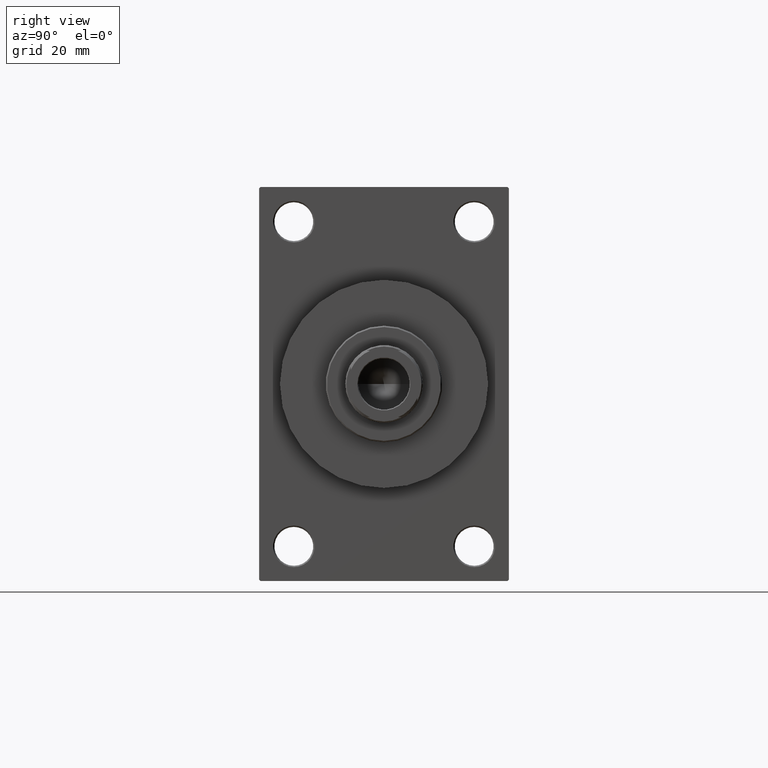
[diagram: clean part render]
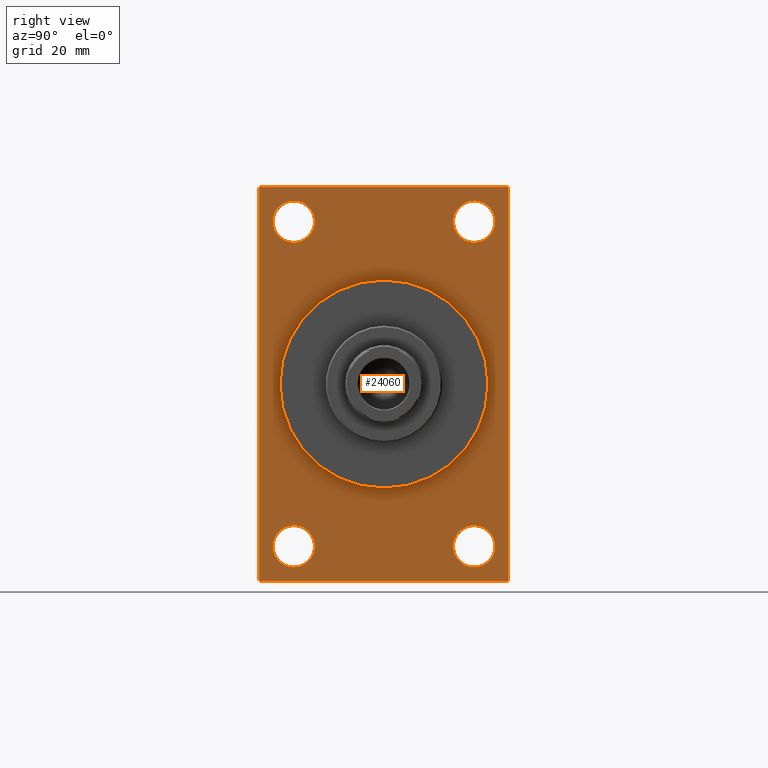
[diagram: same view with one face highlighted and labeled with its STEP entity id]
A machine part, right view. The second image highlights one B-rep face of the part: STEP entity #24060.
In plain terms, the highlighted planar face has unit normal (-1, 0, 0).
Its self-contained STEP definition (entity closure, byte-faithful):
#1240 = EDGE_LOOP ( 'NONE', ( #30084, #27766 ) ) ;
#1350 = CARTESIAN_POINT ( 'NONE',  ( 140.0000000000000000, 32.50000000000000711, -66.00000000000002842 ) ) ;
#1677 = VECTOR ( 'NONE', #1704, 1000.000000000000114 ) ;
#1704 = DIRECTION ( 'NONE',  ( 0.000000000000000000, -0.7071067811865474617, 0.7071067811865474617 ) ) ;
#1892 = CIRCLE ( 'NONE', #33851, 7.499999999999936939 ) ;
#1929 = EDGE_LOOP ( 'NONE', ( #40082, #38029, #31249, #12696, #15529, #6453, #27384, #20364 ) ) ;
#2599 = EDGE_CURVE ( 'NONE', #16192, #33892, #6109, .T. ) ;
#2664 = DIRECTION ( 'NONE',  ( 0.000000000000000000, 0.000000000000000000, 1.000000000000000000 ) ) ;
#2666 = ORIENTED_EDGE ( 'NONE', *, *, #14636, .T. ) ;
#2998 = DIRECTION ( 'NONE',  ( 0.000000000000000000, 0.000000000000000000, -1.000000000000000000 ) ) ;
#3971 = CARTESIAN_POINT ( 'NONE',  ( 140.0000000000000000, -32.50000000000000000, 65.99999999999994316 ) ) ;
#4556 = DIRECTION ( 'NONE',  ( 0.000000000000000000, -1.000000000000000000, -1.541976423090495387E-16 ) ) ;
#4793 = AXIS2_PLACEMENT_3D ( 'NONE', #12931, #31058, #45628 ) ;
#5226 = LINE ( 'NONE', #11681, #17678 ) ;
#5277 = DIRECTION ( 'NONE',  ( 0.000000000000000000, 0.7071067811865573427, -0.7071067811865378028 ) ) ;
#5278 = CARTESIAN_POINT ( 'NONE',  ( 140.0000000000000000, 44.50000000000002132, 71.00000000000000000 ) ) ;
#5348 = DIRECTION ( 'NONE',  ( -1.000000000000000000, 0.000000000000000000, -0.000000000000000000 ) ) ;
#6109 = LINE ( 'NONE', #17082, #37337 ) ;
#6453 = ORIENTED_EDGE ( 'NONE', *, *, #34218, .T. ) ;
#6589 = VERTEX_POINT ( 'NONE', #31247 ) ;
#6620 = CARTESIAN_POINT ( 'NONE',  ( 140.0000000000000000, 45.00000000000001421, -70.50000000000001421 ) ) ;
#7335 = EDGE_CURVE ( 'NONE', #6589, #41693, #30316, .T. ) ;
#7348 = DIRECTION ( 'NONE',  ( 0.000000000000000000, 0.000000000000000000, -1.000000000000000000 ) ) ;
#7405 = AXIS2_PLACEMENT_3D ( 'NONE', #22607, #32633, #47207 ) ;
#7909 = VERTEX_POINT ( 'NONE', #40701 ) ;
#8050 = EDGE_CURVE ( 'NONE', #42024, #20378, #43645, .T. ) ;
#8470 = AXIS2_PLACEMENT_3D ( 'NONE', #18721, #18487, #18944 ) ;
#9319 = EDGE_CURVE ( 'NONE', #12653, #43972, #26909, .T. ) ;
#9336 = ORIENTED_EDGE ( 'NONE', *, *, #29412, .F. ) ;
#9342 = LINE ( 'NONE', #5278, #1677 ) ;
#9363 = DIRECTION ( 'NONE',  ( -1.000000000000000000, 0.000000000000000000, -0.000000000000000000 ) ) ;
#9401 = VERTEX_POINT ( 'NONE', #39406 ) ;
#9620 = VERTEX_POINT ( 'NONE', #6620 ) ;
#9942 = DIRECTION ( 'NONE',  ( -1.000000000000000000, 0.000000000000000000, -0.000000000000000000 ) ) ;
#10234 = EDGE_CURVE ( 'NONE', #18916, #9620, #16520, .T. ) ;
#10886 = FACE_OUTER_BOUND ( 'NONE', #1929, .T. ) ;
#10938 = CARTESIAN_POINT ( 'NONE',  ( 140.0000000000000000, 0.000000000000000000, 0.000000000000000000 ) ) ;
#11307 = CIRCLE ( 'NONE', #32656, 7.500000000000034639 ) ;
#11388 = ORIENTED_EDGE ( 'NONE', *, *, #45341, .T. ) ;
#11681 = CARTESIAN_POINT ( 'NONE',  ( 140.0000000000000000, 45.00000000000002132, 71.00000000000000000 ) ) ;
#12398 = AXIS2_PLACEMENT_3D ( 'NONE', #10938, #40039, #7348 ) ;
#12653 = VERTEX_POINT ( 'NONE', #3971 ) ;
#12674 = CARTESIAN_POINT ( 'NONE',  ( 140.0000000000000000, -44.49999999999997158, -71.00000000000000000 ) ) ;
#12696 = ORIENTED_EDGE ( 'NONE', *, *, #10234, .T. ) ;
#12931 = CARTESIAN_POINT ( 'NONE',  ( 140.0000000000000000, -32.50000000000000000, 58.50000000000000711 ) ) ;
#13668 = AXIS2_PLACEMENT_3D ( 'NONE', #36985, #45116, #26504 ) ;
#13899 = VECTOR ( 'NONE', #4556, 1000.000000000000000 ) ;
#13973 = VECTOR ( 'NONE', #42538, 999.9999999999998863 ) ;
#14221 = FACE_BOUND ( 'NONE', #14734, .T. ) ;
#14546 = VECTOR ( 'NONE', #22667, 1000.000000000000000 ) ;
#14636 = EDGE_CURVE ( 'NONE', #20595, #9401, #1892, .T. ) ;
#14649 = CARTESIAN_POINT ( 'NONE',  ( 140.0000000000000000, -32.50000000000000000, -58.49999999999999289 ) ) ;
#14659 = VERTEX_POINT ( 'NONE', #22767 ) ;
#14734 = EDGE_LOOP ( 'NONE', ( #11388, #19585 ) ) ;
#15319 = CIRCLE ( 'NONE', #26778, 7.499999999999936939 ) ;
#15491 = DIRECTION ( 'NONE',  ( 0.000000000000000000, -4.886545002751570165E-17, -1.000000000000000000 ) ) ;
#15529 = ORIENTED_EDGE ( 'NONE', *, *, #39482, .F. ) ;
#16192 = VERTEX_POINT ( 'NONE', #34890 ) ;
#16427 = DIRECTION ( 'NONE',  ( -1.000000000000000000, 0.000000000000000000, -0.000000000000000000 ) ) ;
#16520 = LINE ( 'NONE', #27500, #13973 ) ;
#17082 = CARTESIAN_POINT ( 'NONE',  ( 140.0000000000000000, -44.99999999999997158, 70.99999999999998579 ) ) ;
#17459 = CARTESIAN_POINT ( 'NONE',  ( 140.0000000000000000, -44.99999999999997158, 70.49999999999998579 ) ) ;
#17678 = VECTOR ( 'NONE', #15491, 1000.000000000000000 ) ;
#17897 = VERTEX_POINT ( 'NONE', #41737 ) ;
#18039 = PLANE ( 'NONE',  #40168 ) ;
#18487 = DIRECTION ( 'NONE',  ( -1.000000000000000000, 0.000000000000000000, -0.000000000000000000 ) ) ;
#18721 = CARTESIAN_POINT ( 'NONE',  ( 140.0000000000000000, 32.50000000000000711, -58.50000000000000000 ) ) ;
#18841 = AXIS2_PLACEMENT_3D ( 'NONE', #20804, #9363, #2664 ) ;
#18916 = VERTEX_POINT ( 'NONE', #43504 ) ;
#18944 = DIRECTION ( 'NONE',  ( 0.000000000000000000, 0.000000000000000000, 1.000000000000000000 ) ) ;
#19485 = VERTEX_POINT ( 'NONE', #45084 ) ;
#19585 = ORIENTED_EDGE ( 'NONE', *, *, #26639, .T. ) ;
#19662 = CARTESIAN_POINT ( 'NONE',  ( 140.0000000000000000, -44.99999999999997158, -70.50000000000000000 ) ) ;
#19670 = CARTESIAN_POINT ( 'NONE',  ( 140.0000000000000000, 32.50000000000000711, 58.50000000000000711 ) ) ;
#19735 = EDGE_CURVE ( 'NONE', #9401, #20595, #38639, .T. ) ;
#19898 = VERTEX_POINT ( 'NONE', #1350 ) ;
#20364 = ORIENTED_EDGE ( 'NONE', *, *, #38280, .T. ) ;
#20378 = VERTEX_POINT ( 'NONE', #46862 ) ;
#20595 = VERTEX_POINT ( 'NONE', #25966 ) ;
#20705 = CARTESIAN_POINT ( 'NONE',  ( 140.0000000000000000, -32.50000000000000000, 51.00000000000007105 ) ) ;
#20804 = CARTESIAN_POINT ( 'NONE',  ( 140.0000000000000000, -32.50000000000000000, -58.49999999999999289 ) ) ;
#20850 = CARTESIAN_POINT ( 'NONE',  ( 140.0000000000000000, -32.50000000000000000, 58.50000000000000711 ) ) ;
#21156 = FACE_BOUND ( 'NONE', #24871, .T. ) ;
#21271 = CIRCLE ( 'NONE', #28109, 7.500000000000041744 ) ;
#22131 = CARTESIAN_POINT ( 'NONE',  ( 140.0000000000000000, -32.50000000000000000, -50.99999999999995737 ) ) ;
#22489 = EDGE_CURVE ( 'NONE', #33892, #7909, #41788, .T. ) ;
#22607 = CARTESIAN_POINT ( 'NONE',  ( 140.0000000000000000, 32.50000000000000711, 58.50000000000000711 ) ) ;
#22667 = DIRECTION ( 'NONE',  ( 0.000000000000000000, -1.000000000000000000, -1.541976423090495633E-16 ) ) ;
#22767 = CARTESIAN_POINT ( 'NONE',  ( 140.0000000000000000, -32.50000000000000000, -66.00000000000001421 ) ) ;
#22930 = EDGE_LOOP ( 'NONE', ( #24835, #9336 ) ) ;
#24060 = ADVANCED_FACE ( 'NONE', ( #24511, #25204, #14221, #21156, #32118, #10886 ), #18039, .F. ) ;
#24232 = EDGE_CURVE ( 'NONE', #14659, #39739, #39423, .T. ) ;
#24511 = FACE_BOUND ( 'NONE', #41235, .T. ) ;
#24835 = ORIENTED_EDGE ( 'NONE', *, *, #8050, .F. ) ;
#24871 = EDGE_LOOP ( 'NONE', ( #31292, #2666 ) ) ;
#25204 = FACE_BOUND ( 'NONE', #1240, .T. ) ;
#25966 = CARTESIAN_POINT ( 'NONE',  ( 140.0000000000000000, 32.50000000000000711, 65.99999999999994316 ) ) ;
#26347 = DIRECTION ( 'NONE',  ( 0.000000000000000000, 0.000000000000000000, 1.000000000000000000 ) ) ;
#26504 = DIRECTION ( 'NONE',  ( 0.000000000000000000, 0.000000000000000000, -1.000000000000000000 ) ) ;
#26639 = EDGE_CURVE ( 'NONE', #17897, #19898, #11307, .T. ) ;
#26778 = AXIS2_PLACEMENT_3D ( 'NONE', #20850, #38269, #27770 ) ;
#26909 = CIRCLE ( 'NONE', #4793, 7.499999999999936939 ) ;
#27384 = ORIENTED_EDGE ( 'NONE', *, *, #7335, .T. ) ;
#27426 = CARTESIAN_POINT ( 'NONE',  ( 140.0000000000000000, -44.49999999999995026, 70.99999999999998579 ) ) ;
#27500 = CARTESIAN_POINT ( 'NONE',  ( 140.0000000000000000, 45.00000000000001421, -70.50000000000001421 ) ) ;
#27519 = CIRCLE ( 'NONE', #8470, 7.500000000000034639 ) ;
#27766 = ORIENTED_EDGE ( 'NONE', *, *, #28214, .T. ) ;
#27770 = DIRECTION ( 'NONE',  ( 0.000000000000000000, 0.000000000000000000, 1.000000000000000000 ) ) ;
#27969 = DIRECTION ( 'NONE',  ( -0.000000000000000000, -0.7071067811865426878, -0.7071067811865524577 ) ) ;
#28109 = AXIS2_PLACEMENT_3D ( 'NONE', #14649, #29198, #39483 ) ;
#28214 = EDGE_CURVE ( 'NONE', #39739, #14659, #21271, .T. ) ;
#28315 = VECTOR ( 'NONE', #27969, 1000.000000000000000 ) ;
#29198 = DIRECTION ( 'NONE',  ( -1.000000000000000000, 0.000000000000000000, -0.000000000000000000 ) ) ;
#29412 = EDGE_CURVE ( 'NONE', #20378, #42024, #44146, .T. ) ;
#30084 = ORIENTED_EDGE ( 'NONE', *, *, #24232, .T. ) ;
#30316 = LINE ( 'NONE', #45357, #13899 ) ;
#30760 = CARTESIAN_POINT ( 'NONE',  ( 140.0000000000000000, 45.00000000000001421, -70.99999999999998579 ) ) ;
#31058 = DIRECTION ( 'NONE',  ( -1.000000000000000000, 0.000000000000000000, -0.000000000000000000 ) ) ;
#31247 = CARTESIAN_POINT ( 'NONE',  ( 140.0000000000000000, 44.50000000000002132, 71.00000000000000000 ) ) ;
#31249 = ORIENTED_EDGE ( 'NONE', *, *, #32822, .F. ) ;
#31292 = ORIENTED_EDGE ( 'NONE', *, *, #19735, .T. ) ;
#32118 = FACE_BOUND ( 'NONE', #22930, .T. ) ;
#32633 = DIRECTION ( 'NONE',  ( -1.000000000000000000, 0.000000000000000000, -0.000000000000000000 ) ) ;
#32656 = AXIS2_PLACEMENT_3D ( 'NONE', #41728, #16427, #38614 ) ;
#32822 = EDGE_CURVE ( 'NONE', #18916, #7909, #34087, .T. ) ;
#33851 = AXIS2_PLACEMENT_3D ( 'NONE', #19670, #5348, #26347 ) ;
#33892 = VERTEX_POINT ( 'NONE', #19662 ) ;
#33981 = EDGE_CURVE ( 'NONE', #43972, #12653, #15319, .T. ) ;
#34087 = LINE ( 'NONE', #30760, #14546 ) ;
#34218 = EDGE_CURVE ( 'NONE', #19485, #6589, #9342, .T. ) ;
#34890 = CARTESIAN_POINT ( 'NONE',  ( 140.0000000000000000, -44.99999999999997158, 70.49999999999998579 ) ) ;
#36985 = CARTESIAN_POINT ( 'NONE',  ( 140.0000000000000000, 0.000000000000000000, 0.000000000000000000 ) ) ;
#37175 = VECTOR ( 'NONE', #5277, 1000.000000000000000 ) ;
#37337 = VECTOR ( 'NONE', #2998, 1000.000000000000000 ) ;
#38029 = ORIENTED_EDGE ( 'NONE', *, *, #22489, .T. ) ;
#38269 = DIRECTION ( 'NONE',  ( -1.000000000000000000, 0.000000000000000000, -0.000000000000000000 ) ) ;
#38280 = EDGE_CURVE ( 'NONE', #41693, #16192, #38941, .T. ) ;
#38614 = DIRECTION ( 'NONE',  ( 0.000000000000000000, 0.000000000000000000, 1.000000000000000000 ) ) ;
#38639 = CIRCLE ( 'NONE', #7405, 7.499999999999936939 ) ;
#38941 = LINE ( 'NONE', #17459, #28315 ) ;
#39406 = CARTESIAN_POINT ( 'NONE',  ( 140.0000000000000000, 32.50000000000000711, 51.00000000000007105 ) ) ;
#39423 = CIRCLE ( 'NONE', #18841, 7.500000000000041744 ) ;
#39482 = EDGE_CURVE ( 'NONE', #19485, #9620, #5226, .T. ) ;
#39483 = DIRECTION ( 'NONE',  ( 0.000000000000000000, 0.000000000000000000, 1.000000000000000000 ) ) ;
#39522 = DIRECTION ( 'NONE',  ( -0.000000000000000000, 0.000000000000000000, 1.000000000000000000 ) ) ;
#39739 = VERTEX_POINT ( 'NONE', #22131 ) ;
#39991 = CARTESIAN_POINT ( 'NONE',  ( 140.0000000000000000, 0.000000000000000000, 0.000000000000000000 ) ) ;
#40039 = DIRECTION ( 'NONE',  ( 1.000000000000000000, 0.000000000000000000, 0.000000000000000000 ) ) ;
#40082 = ORIENTED_EDGE ( 'NONE', *, *, #2599, .T. ) ;
#40168 = AXIS2_PLACEMENT_3D ( 'NONE', #39991, #9942, #39522 ) ;
#40701 = CARTESIAN_POINT ( 'NONE',  ( 140.0000000000000000, -44.49999999999994316, -71.00000000000000000 ) ) ;
#41235 = EDGE_LOOP ( 'NONE', ( #42919, #47049 ) ) ;
#41693 = VERTEX_POINT ( 'NONE', #27426 ) ;
#41728 = CARTESIAN_POINT ( 'NONE',  ( 140.0000000000000000, 32.50000000000000711, -58.50000000000000000 ) ) ;
#41737 = CARTESIAN_POINT ( 'NONE',  ( 140.0000000000000000, 32.50000000000000711, -50.99999999999996447 ) ) ;
#41788 = LINE ( 'NONE', #12674, #37175 ) ;
#41931 = CARTESIAN_POINT ( 'NONE',  ( 140.0000000000000000, 0.000000000000000000, 37.50000000000000711 ) ) ;
#42024 = VERTEX_POINT ( 'NONE', #41931 ) ;
#42538 = DIRECTION ( 'NONE',  ( -0.000000000000000000, 0.7071067811865574537, 0.7071067811865376918 ) ) ;
#42919 = ORIENTED_EDGE ( 'NONE', *, *, #33981, .T. ) ;
#43504 = CARTESIAN_POINT ( 'NONE',  ( 140.0000000000000000, 44.50000000000004263, -70.99999999999998579 ) ) ;
#43645 = CIRCLE ( 'NONE', #12398, 37.50000000000000711 ) ;
#43972 = VERTEX_POINT ( 'NONE', #20705 ) ;
#44146 = CIRCLE ( 'NONE', #13668, 37.50000000000000711 ) ;
#45084 = CARTESIAN_POINT ( 'NONE',  ( 140.0000000000000000, 45.00000000000002132, 70.50000000000000000 ) ) ;
#45116 = DIRECTION ( 'NONE',  ( 1.000000000000000000, 0.000000000000000000, 0.000000000000000000 ) ) ;
#45341 = EDGE_CURVE ( 'NONE', #19898, #17897, #27519, .T. ) ;
#45357 = CARTESIAN_POINT ( 'NONE',  ( 140.0000000000000000, 45.00000000000002132, 71.00000000000000000 ) ) ;
#45628 = DIRECTION ( 'NONE',  ( 0.000000000000000000, 0.000000000000000000, 1.000000000000000000 ) ) ;
#46862 = CARTESIAN_POINT ( 'NONE',  ( 140.0000000000000000, 4.592425496802575156E-15, -37.50000000000000711 ) ) ;
#47049 = ORIENTED_EDGE ( 'NONE', *, *, #9319, .T. ) ;
#47207 = DIRECTION ( 'NONE',  ( 0.000000000000000000, 0.000000000000000000, 1.000000000000000000 ) ) ;